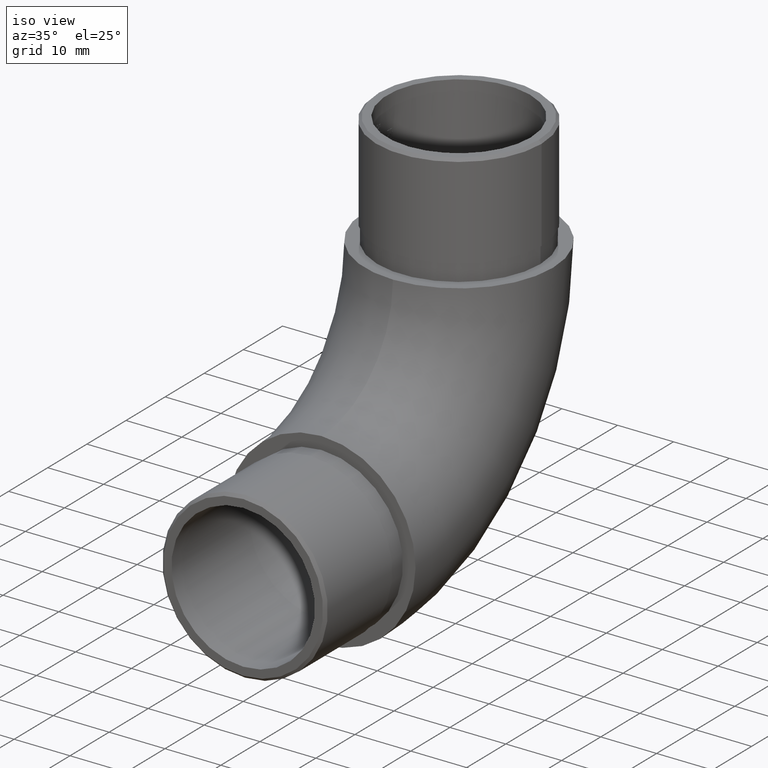
[diagram: clean part render]
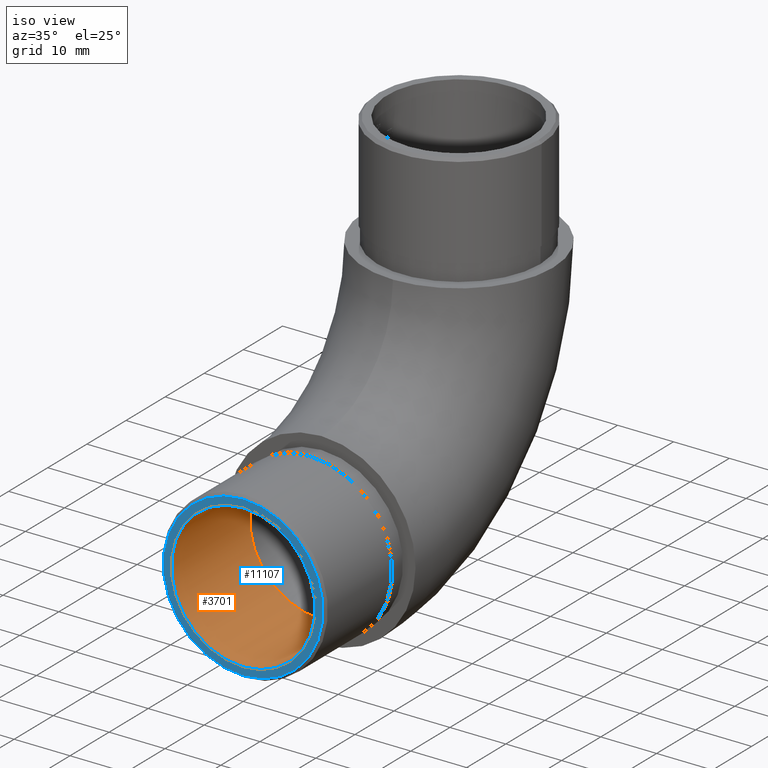
[diagram: same view with the hole feature highlighted: cylindrical wall and planar end face, labeled with their STEP entity ids]
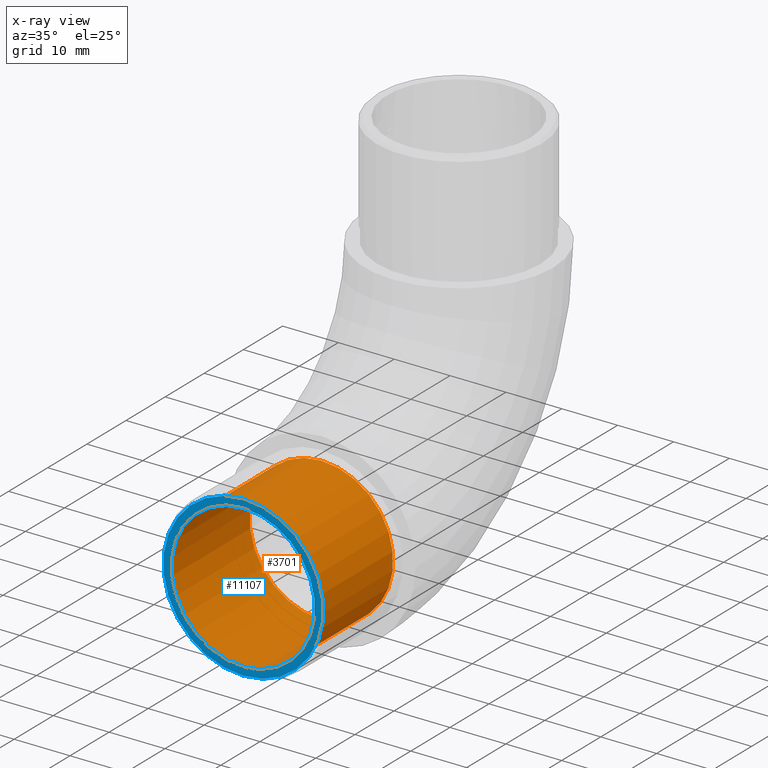
[diagram: x-ray of the same camera — body ghosted, the hole faces saturated]
A machine part, iso view. The highlighted faces form one hole feature of diameter 25.7 mm: the cylindrical wall (entity #3701, orange) and its adjacent planar end face (entity #11107, blue) — they share a circular edge in the B-rep.
The next image is the same camera in x-ray (body ghosted, the hole faces saturated) — the bore reads through the body.
Wall:
#305 = CARTESIAN_POINT ( 'NONE',  ( 0.0000000000000000000, -20.00000000000000000, 4.000000000000003600 ) ) ;
#561 = EDGE_CURVE ( 'NONE', #764, #764, #6256, .T. ) ;
#615 = VERTEX_POINT ( 'NONE', #1452 ) ;
#764 = VERTEX_POINT ( 'NONE', #305 ) ;
#1326 = AXIS2_PLACEMENT_3D ( 'NONE', #6787, #6701, #5898 ) ;
#1452 = CARTESIAN_POINT ( 'NONE',  ( 0.0000000000000000000, -6.938893903907228400E-015, 29.70000000000000300 ) ) ;
#1637 = DIRECTION ( 'NONE',  ( 0.0000000000000000000, -1.000000000000000000, 0.0000000000000000000 ) ) ;
#2749 = CARTESIAN_POINT ( 'NONE',  ( 0.0000000000000000000, -3.000000000000000000, 16.85000000000000500 ) ) ;
#3701 = ADVANCED_FACE ( 'NONE', ( #5304, #12639 ), #6055, .F. ) ;
#3769 = CIRCLE ( 'NONE', #1326, 12.85000000000000000 ) ;
#4475 = CARTESIAN_POINT ( 'NONE',  ( 0.0000000000000000000, -20.00000000000000000, 16.85000000000000500 ) ) ;
#4673 = EDGE_LOOP ( 'NONE', ( #11165 ) ) ;
#5009 = EDGE_CURVE ( 'NONE', #615, #615, #3769, .T. ) ;
#5304 = FACE_OUTER_BOUND ( 'NONE', #4673, .T. ) ;
#5716 = AXIS2_PLACEMENT_3D ( 'NONE', #4475, #1637, #10301 ) ;
#5898 = DIRECTION ( 'NONE',  ( 0.0000000000000000000, 0.0000000000000000000, 1.000000000000000000 ) ) ;
#5938 = EDGE_LOOP ( 'NONE', ( #6497 ) ) ;
#6055 = CYLINDRICAL_SURFACE ( 'NONE', #8189, 12.85000000000000000 ) ;
#6256 = CIRCLE ( 'NONE', #5716, 12.85000000000000000 ) ;
#6497 = ORIENTED_EDGE ( 'NONE', *, *, #561, .T. ) ;
#6701 = DIRECTION ( 'NONE',  ( 0.0000000000000000000, 1.000000000000000000, 0.0000000000000000000 ) ) ;
#6787 = CARTESIAN_POINT ( 'NONE',  ( 0.0000000000000000000, -6.938893903907228400E-015, 16.85000000000000500 ) ) ;
#8189 = AXIS2_PLACEMENT_3D ( 'NONE', #2749, #11372, #8522 ) ;
#8522 = DIRECTION ( 'NONE',  ( 0.0000000000000000000, 0.0000000000000000000, 1.000000000000000000 ) ) ;
#10301 = DIRECTION ( 'NONE',  ( 0.0000000000000000000, 0.0000000000000000000, -1.000000000000000000 ) ) ;
#11165 = ORIENTED_EDGE ( 'NONE', *, *, #5009, .T. ) ;
#11372 = DIRECTION ( 'NONE',  ( -0.0000000000000000000, 1.000000000000000000, -0.0000000000000000000 ) ) ;
#12639 = FACE_OUTER_BOUND ( 'NONE', #5938, .T. ) ;
End face:
#305 = CARTESIAN_POINT ( 'NONE',  ( 0.0000000000000000000, -20.00000000000000000, 4.000000000000003600 ) ) ;
#561 = EDGE_CURVE ( 'NONE', #764, #764, #6256, .T. ) ;
#629 = FACE_OUTER_BOUND ( 'NONE', #5113, .T. ) ;
#688 = PLANE ( 'NONE',  #2201 ) ;
#764 = VERTEX_POINT ( 'NONE', #305 ) ;
#1589 = EDGE_LOOP ( 'NONE', ( #9510 ) ) ;
#1637 = DIRECTION ( 'NONE',  ( 0.0000000000000000000, -1.000000000000000000, 0.0000000000000000000 ) ) ;
#1650 = DIRECTION ( 'NONE',  ( 0.0000000000000000000, -1.000000000000000000, 0.0000000000000000000 ) ) ;
#1810 = VERTEX_POINT ( 'NONE', #8088 ) ;
#2201 = AXIS2_PLACEMENT_3D ( 'NONE', #7488, #1650, #4608 ) ;
#3054 = ORIENTED_EDGE ( 'NONE', *, *, #11569, .T. ) ;
#3352 = CIRCLE ( 'NONE', #7027, 14.30000000000002000 ) ;
#4475 = CARTESIAN_POINT ( 'NONE',  ( 0.0000000000000000000, -20.00000000000000000, 16.85000000000000500 ) ) ;
#4608 = DIRECTION ( 'NONE',  ( 0.0000000000000000000, -0.0000000000000000000, -1.000000000000000000 ) ) ;
#5113 = EDGE_LOOP ( 'NONE', ( #3054 ) ) ;
#5716 = AXIS2_PLACEMENT_3D ( 'NONE', #4475, #1637, #10301 ) ;
#6256 = CIRCLE ( 'NONE', #5716, 12.85000000000000000 ) ;
#6264 = FACE_BOUND ( 'NONE', #1589, .T. ) ;
#7027 = AXIS2_PLACEMENT_3D ( 'NONE', #8728, #7671, #8613 ) ;
#7488 = CARTESIAN_POINT ( 'NONE',  ( 0.0000000000000000000, -20.00000000000000000, 16.85000000000000500 ) ) ;
#7671 = DIRECTION ( 'NONE',  ( 0.0000000000000000000, -1.000000000000000000, 0.0000000000000000000 ) ) ;
#8088 = CARTESIAN_POINT ( 'NONE',  ( 0.0000000000000000000, -20.00000000000000000, 2.549999999999982900 ) ) ;
#8613 = DIRECTION ( 'NONE',  ( 0.0000000000000000000, 0.0000000000000000000, -1.000000000000000000 ) ) ;
#8728 = CARTESIAN_POINT ( 'NONE',  ( 0.0000000000000000000, -20.00000000000000000, 16.85000000000000500 ) ) ;
#9510 = ORIENTED_EDGE ( 'NONE', *, *, #561, .F. ) ;
#10301 = DIRECTION ( 'NONE',  ( 0.0000000000000000000, 0.0000000000000000000, -1.000000000000000000 ) ) ;
#11107 = ADVANCED_FACE ( 'NONE', ( #629, #6264 ), #688, .T. ) ;
#11569 = EDGE_CURVE ( 'NONE', #1810, #1810, #3352, .T. ) ;